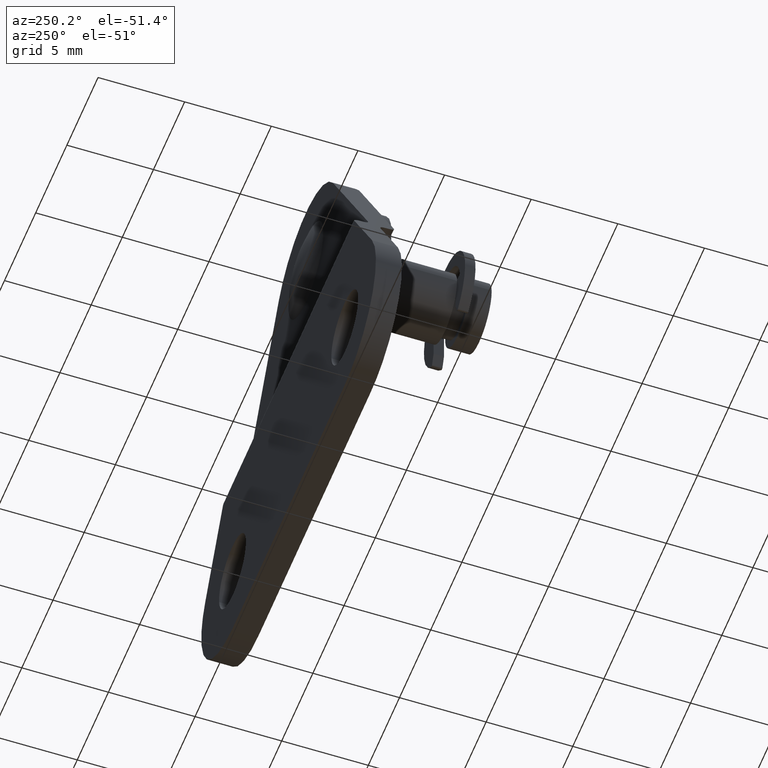
[diagram: clean part render]
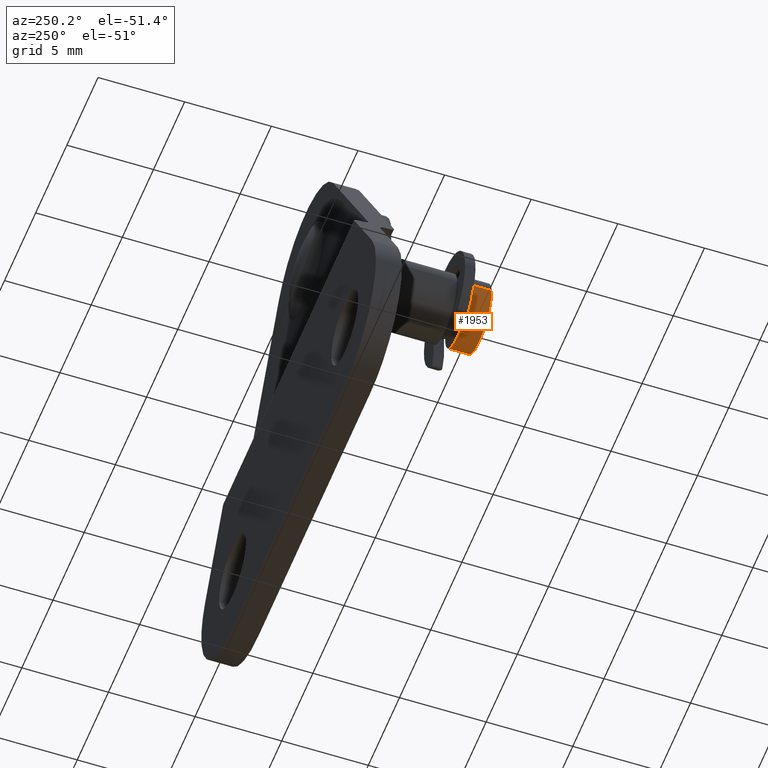
[diagram: same view with one face highlighted and labeled with its STEP entity id]
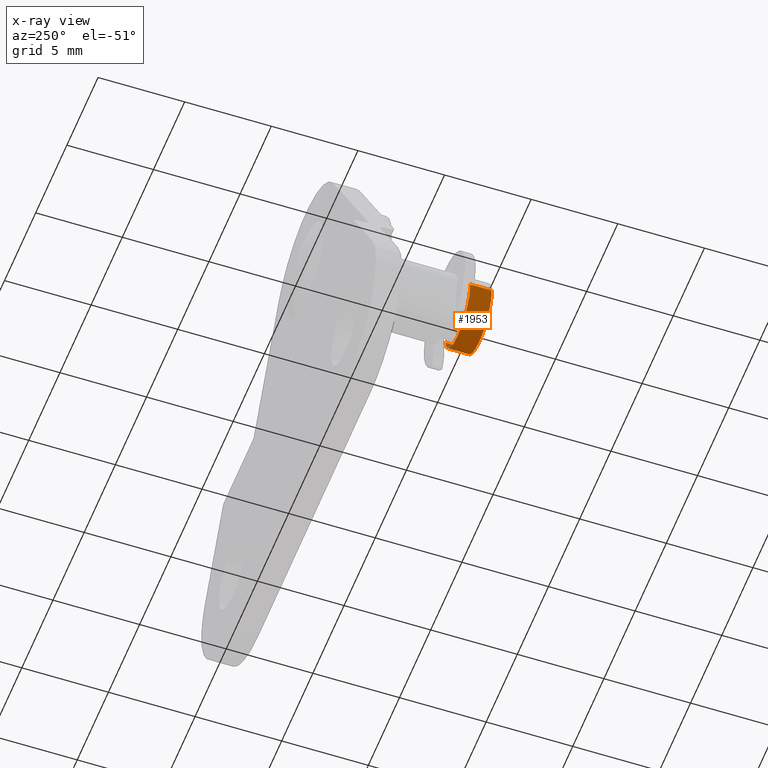
[diagram: x-ray of the same camera — body ghosted, the highlighted face saturated]
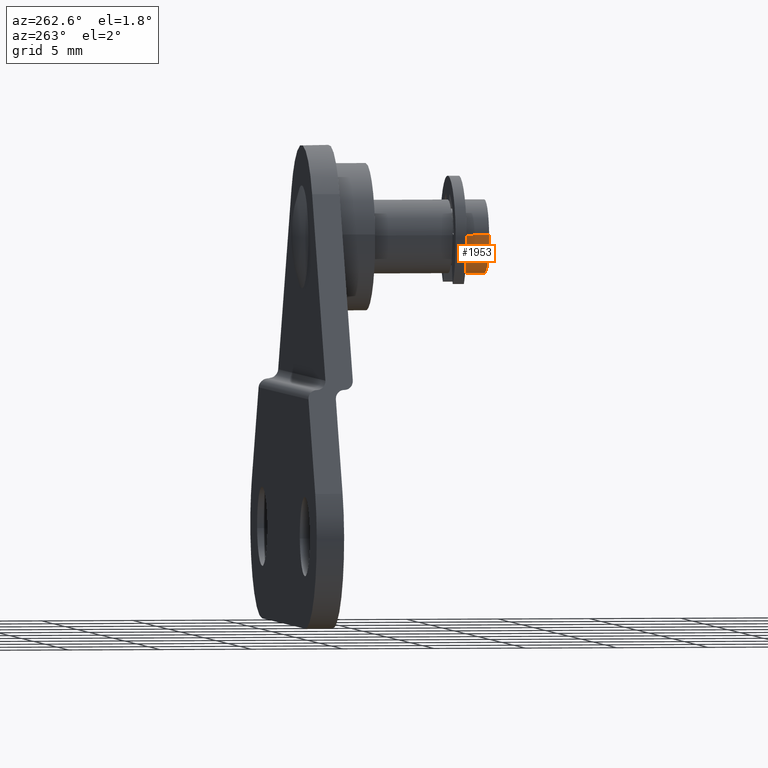
[diagram: same view with one face highlighted and labeled with its STEP entity id]
A machine part, auxiliary view. The second image highlights one B-rep face of the part: STEP entity #1953.
The next image is the same camera in x-ray: the body ghosted, the highlighted face saturated — about 0% of this face is hidden behind the body in this view.
A second angle (auxiliary view) of the same face is appended — the face is thin or edge-on in the first view.
In plain terms, the highlighted face is a freeform B-spline surface patch.
Its self-contained STEP definition (entity closure, byte-faithful):
#1790=CARTESIAN_POINT('',(1.986019052724167,-9.759995000000000,15.763931530659850));
#1791=VERTEX_POINT('',#1790);
#1809=CARTESIAN_POINT('',(-1.996269751361372,-9.759995000000089,16.122094552676181));
#1810=VERTEX_POINT('',#1809);
#1824=CARTESIAN_POINT('',(-1.996269749504410,-11.0,16.122094583038500));
#1825=VERTEX_POINT('',#1824);
#1826=CARTESIAN_POINT('',(-1.996269751361372,-9.759995000000089,16.122094552676181));
#1827=CARTESIAN_POINT('',(-1.996269749504410,-11.0,16.122094583038500));
#1828=QUASI_UNIFORM_CURVE('',1,(#1826,#1827),.UNSPECIFIED.,.F.,.U.);
#1829=EDGE_CURVE('',#1810,#1825,#1828,.T.);
#1846=CARTESIAN_POINT('',(1.986019052724167,-11.0,15.763931530659850));
#1847=VERTEX_POINT('',#1846);
#1863=CARTESIAN_POINT('',(1.986019052724167,-9.759995000000000,15.763931530659850));
#1864=CARTESIAN_POINT('',(1.986019052724167,-11.0,15.763931530659850));
#1865=QUASI_UNIFORM_CURVE('',1,(#1863,#1864),.UNSPECIFIED.,.F.,.U.);
#1866=EDGE_CURVE('',#1791,#1847,#1865,.T.);
#1871=CARTESIAN_POINT('',(-1.996269596843733,-9.728994874999998,16.122097079069711));
#1872=CARTESIAN_POINT('',(-2.118366675913447,-9.728994874999998,14.125827482225983));
#1873=CARTESIAN_POINT('',(-0.122097079069714,-9.728994874999998,14.003730403156270));
#1874=CARTESIAN_POINT('',(1.763086981679002,-9.728994874999998,13.888427606534941));
#1875=CARTESIAN_POINT('',(1.986019052727332,-9.728994875000000,15.763931530686484));
#1876=CARTESIAN_POINT('',(-1.996269596843733,-11.031775128125000,16.122097079069711));
#1877=CARTESIAN_POINT('',(-2.118366675913447,-11.031775128125002,14.125827482225983));
#1878=CARTESIAN_POINT('',(-0.122097079069714,-11.031775128125000,14.003730403156270));
#1879=CARTESIAN_POINT('',(1.763086981679002,-11.031775128125004,13.888427606534941));
#1880=CARTESIAN_POINT('',(1.986019052727332,-11.031775128125000,15.763931530686484));
#1888=(BOUNDED_SURFACE()B_SPLINE_SURFACE(2,1,((#1871,#1876),(#1872,#1877),(#1873,#1878),(#1874,#1879),(#1875,#1880)),.UNSPECIFIED.,.F.,.F.,.U.)B_SPLINE_SURFACE_WITH_KNOTS((3,2,3),(2,2),(0.0,3.313708498984758,6.494868658010126),(0.0,1.0),.UNSPECIFIED.)GEOMETRIC_REPRESENTATION_ITEM()RATIONAL_B_SPLINE_SURFACE(((1.0,1.0),(0.707106781186548,0.707106781186548),(1.0,1.0),(0.718822509939086,0.718822509939086),(0.977505800795127,0.977505800795127)))REPRESENTATION_ITEM('')SURFACE());
#1889=CARTESIAN_POINT('',(0.0,-9.759995000000000,14.0));
#1890=VERTEX_POINT('',#1889);
#1891=CARTESIAN_POINT('',(0.0,-9.759995000000000,14.0));
#1892=CARTESIAN_POINT('',(1.776349051854761,-9.759995000000000,13.999999999999995));
#1893=CARTESIAN_POINT('',(1.986019052724168,-9.759995000000000,15.763931530659848));
#1901=(BOUNDED_CURVE()B_SPLINE_CURVE(2,(#1891,#1892,#1893),.UNSPECIFIED.,.F.,.U.)B_SPLINE_CURVE_WITH_KNOTS((3,3),(0.0,0.229562473511112),.UNSPECIFIED.)CURVE()GEOMETRIC_REPRESENTATION_ITEM()RATIONAL_B_SPLINE_CURVE((1.0,0.731050832858210,0.956026754179002))REPRESENTATION_ITEM(''));
#1902=EDGE_CURVE('',#1890,#1791,#1901,.T.);
#1903=ORIENTED_EDGE('',*,*,#1902,.T.);
#1904=ORIENTED_EDGE('',*,*,#1866,.T.);
#1905=CARTESIAN_POINT('',(0.0,-11.0,14.0));
#1906=VERTEX_POINT('',#1905);
#1907=CARTESIAN_POINT('',(0.0,-11.0,14.0));
#1908=CARTESIAN_POINT('',(1.776349051854761,-11.0,13.999999999999995));
#1909=CARTESIAN_POINT('',(1.986019052724168,-10.999999999999998,15.763931530659848));
#1917=(BOUNDED_CURVE()B_SPLINE_CURVE(2,(#1907,#1908,#1909),.UNSPECIFIED.,.F.,.U.)B_SPLINE_CURVE_WITH_KNOTS((3,3),(0.0,0.229562473511112),.UNSPECIFIED.)CURVE()GEOMETRIC_REPRESENTATION_ITEM()RATIONAL_B_SPLINE_CURVE((1.0,0.731050832858210,0.956026754179002))REPRESENTATION_ITEM(''));
#1918=EDGE_CURVE('',#1906,#1847,#1917,.T.);
#1919=ORIENTED_EDGE('',*,*,#1918,.F.);
#1920=CARTESIAN_POINT('',(-1.996269749504410,-10.999999999999998,16.122094583038507));
#1921=CARTESIAN_POINT('',(-2.000000000000000,-11.000000000000004,16.061104275082371));
#1922=CARTESIAN_POINT('',(-2.0,-11.0,16.0));
#1923=CARTESIAN_POINT('',(-2.000000000000000,-11.0,13.999999999999998));
#1924=CARTESIAN_POINT('',(0.0,-11.0,14.0));
#1932=(BOUNDED_CURVE()B_SPLINE_CURVE(2,(#1920,#1921,#1922,#1923,#1924),.UNSPECIFIED.,.F.,.U.)B_SPLINE_CURVE_WITH_KNOTS((3,2,3),(0.739333177985494,0.750000000000000,1.0),.UNSPECIFIED.)CURVE()GEOMETRIC_REPRESENTATION_ITEM()RATIONAL_B_SPLINE_CURVE((0.976072504053083,0.987503040662645,1.0,0.707106781186548,1.0))REPRESENTATION_ITEM(''));
#1933=EDGE_CURVE('',#1825,#1906,#1932,.T.);
#1934=ORIENTED_EDGE('',*,*,#1933,.F.);
#1935=ORIENTED_EDGE('',*,*,#1829,.F.);
#1936=CARTESIAN_POINT('',(-1.996269751361373,-9.759995000000089,16.122094552676185));
#1937=CARTESIAN_POINT('',(-2.0,-9.759994999999998,16.061104259858649));
#1938=CARTESIAN_POINT('',(-2.0,-9.759995000000000,16.0));
#1939=CARTESIAN_POINT('',(-2.000000000000000,-9.759995000000000,13.999999999999998));
#1940=CARTESIAN_POINT('',(0.0,-9.759995000000000,14.0));
#1948=(BOUNDED_CURVE()B_SPLINE_CURVE(2,(#1936,#1937,#1938,#1939,#1940),.UNSPECIFIED.,.F.,.U.)B_SPLINE_CURVE_WITH_KNOTS((3,2,3),(0.739333180609851,0.750000000000000,1.0),.UNSPECIFIED.)CURVE()GEOMETRIC_REPRESENTATION_ITEM()RATIONAL_B_SPLINE_CURVE((0.976072509677589,0.987503043737270,1.0,0.707106781186548,1.0))REPRESENTATION_ITEM(''));
#1949=EDGE_CURVE('',#1810,#1890,#1948,.T.);
#1950=ORIENTED_EDGE('',*,*,#1949,.T.);
#1951=EDGE_LOOP('',(#1903,#1904,#1919,#1934,#1935,#1950));
#1952=FACE_OUTER_BOUND('',#1951,.T.);
#1953=ADVANCED_FACE('',(#1952),#1888,.T.);